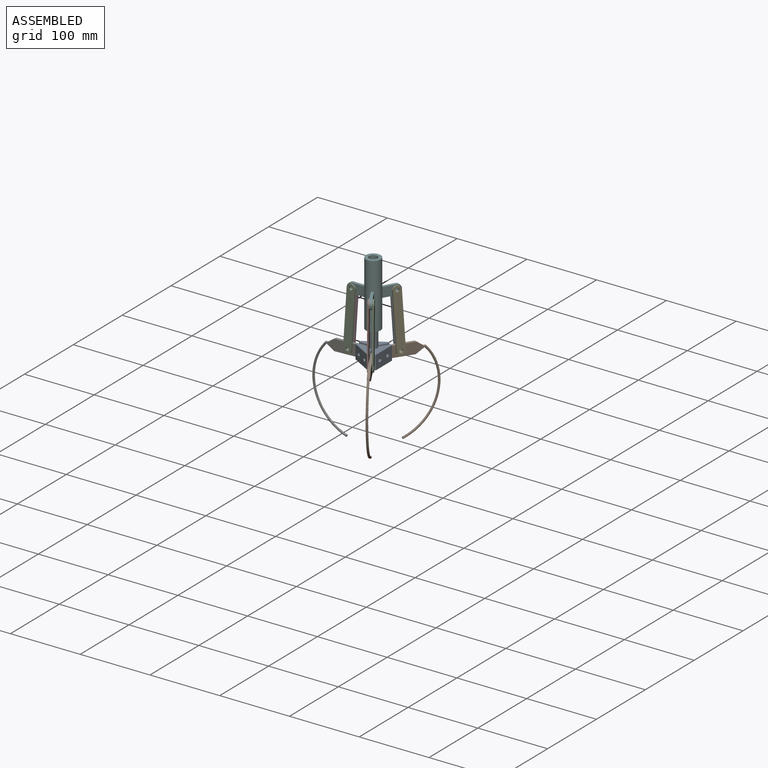
[diagram: assembled view]
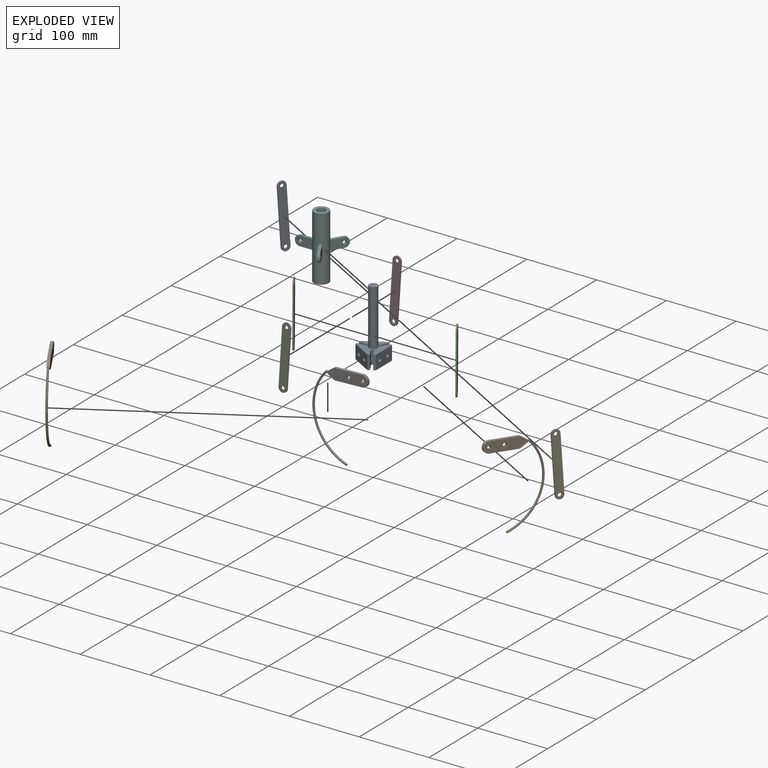
[diagram: exploded view]
GUIDED TOUR — MATED ASSEMBLY (Onshape document cd99ab42009fdd56e23e20a0, AutoMate assembly cd99ab42009fdd56e23e20a0_7320a39aca92b8e2df972b13_fc60f6d1e0266c84082ffd5f_default)

This assembly has 11 components, labeled P0..P10 below (a component is one placed occurrence of a part; the same part can appear more than once), held together by 16 mates. A mate is a constraint between two components; its type names the relative motion it leaves free:
  REVOLUTE — leaves rotation about the listed axis free (a hinge),
  SLIDER — leaves translation along the listed axis free.
Axis/direction vectors are unit vectors and 'through' points are millimeter coordinates, both in the assembly's world frame.

MATES
  1. REVOLUTE "Revolute 5": P3 <-> P6, axis (0.000, -1.000, 0.000) through (-34.49, 2.00, -126.84) mm
  2. REVOLUTE "Revolute 6": P9 <-> P0, axis (0.866, 0.500, 0.000) through (8.98, -11.56, -126.17) mm
  3. REVOLUTE "Revolute 10": P2 <-> P5, axis (0.866, 0.500, 0.000) through (16.43, -24.46, -47.00) mm
  4. REVOLUTE "Revolute 7": P1 <-> P0, axis (0.866, -0.500, 0.000) through (8.98, 11.56, -126.17) mm
  5. REVOLUTE "Revolute 2": P10 <-> P6, axis (0.000, 1.000, 0.000) through (-34.49, -2.00, -126.84) mm
  6. REVOLUTE "Revolute 15": P1 <-> P4, axis (0.866, -0.500, 0.000) through (18.98, 28.87, -126.84) mm
  7. REVOLUTE "Revolute 11": P5 <-> P7, axis (-0.866, -0.500, 0.000) through (12.97, -26.46, -47.00) mm
  8. REVOLUTE "Revolute 3": P10 <-> P5, axis (0.000, 1.000, 0.000) through (-29.40, -2.00, -47.00) mm
  9. REVOLUTE "Revolute 9": P7 <-> P9, axis (0.866, 0.500, 0.000) through (15.51, -30.87, -126.84) mm
  10. REVOLUTE "Revolute 12": P8 <-> P1, axis (0.866, -0.500, 0.000) through (15.51, 30.87, -126.84) mm
  11. REVOLUTE "Revolute 13": P8 <-> P5, axis (0.866, -0.500, 0.000) through (12.97, 26.46, -47.00) mm
  12. REVOLUTE "Revolute 14": P4 <-> P5, axis (-0.866, 0.500, 0.000) through (16.43, 24.46, -47.00) mm
  13. SLIDER "Slider 1": P0 <-> P5, axis (0.000, 0.000, -1.000) through (0.00, 0.00, -76.17) mm
  14. REVOLUTE "Revolute 1": P6 <-> P0, axis (0.000, -1.000, 0.000) through (-14.50, -2.00, -126.17) mm
  15. REVOLUTE "Revolute 4": P3 <-> P5, axis (0.000, -1.000, 0.000) through (-29.40, 2.00, -47.00) mm
  16. REVOLUTE "Revolute 8": P2 <-> P9, axis (-0.866, -0.500, 0.000) through (18.98, -28.87, -126.84) mm

ASSEMBLY ORDER
  1. P0 — the base component [order heuristic]
  2. P5 [order verified]
  3. P9 — core [order heuristic]
  4. P1 — core [order heuristic]
  5. P4 [order verified]
  6. P7 [order verified]
  7. P3 [order verified]
  8. P10 [order verified]
  9. P6 [order verified]
  10. P2 [order verified]
  11. P8 [order verified]
Order-tag legend:
  [order verified] — this step's position reverses a verified removal order: the component was checked to insert without passing through the ones already placed.
  [order heuristic] — the first 3 components form the assembly's core: parts whose collision-free extraction could not be verified, listed in mate-graph order.

Of the 11 components, 7 carry the full construction recipe — the FeatureScript program that regenerates the part's solid from scratch; the rest are supplied as boundary geometry only.
Each toured component is shown spotlighted twice — in the assembled view, then in the exploded view, where a leader line traces a displaced component back to its assembled socket (saturated green if recipe-attached, orange if geometry-only; every other component desaturated gray) — followed by its recipe or geometry summary and the mates that hold it.
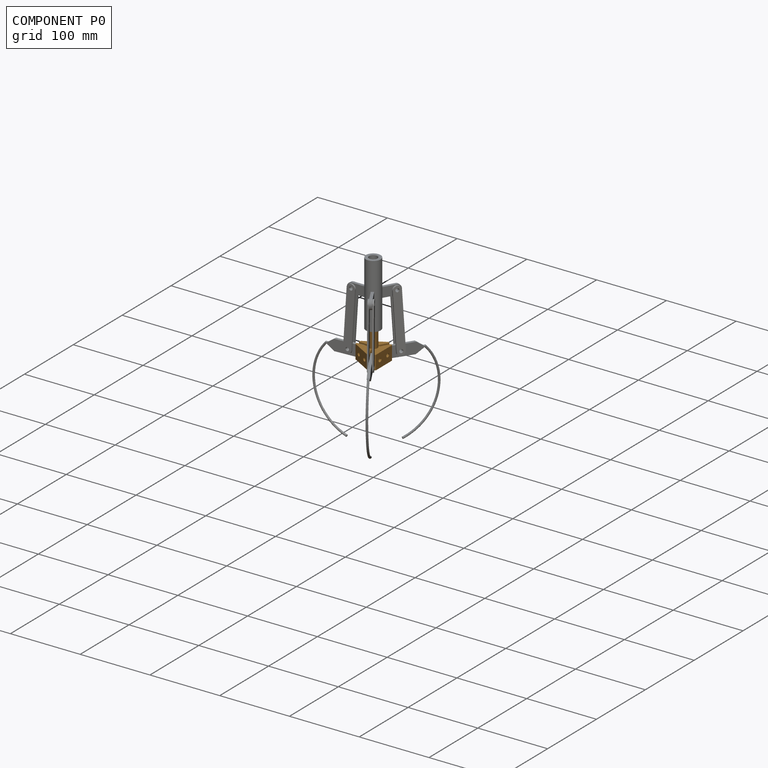
[diagram: component P0 — assembled]
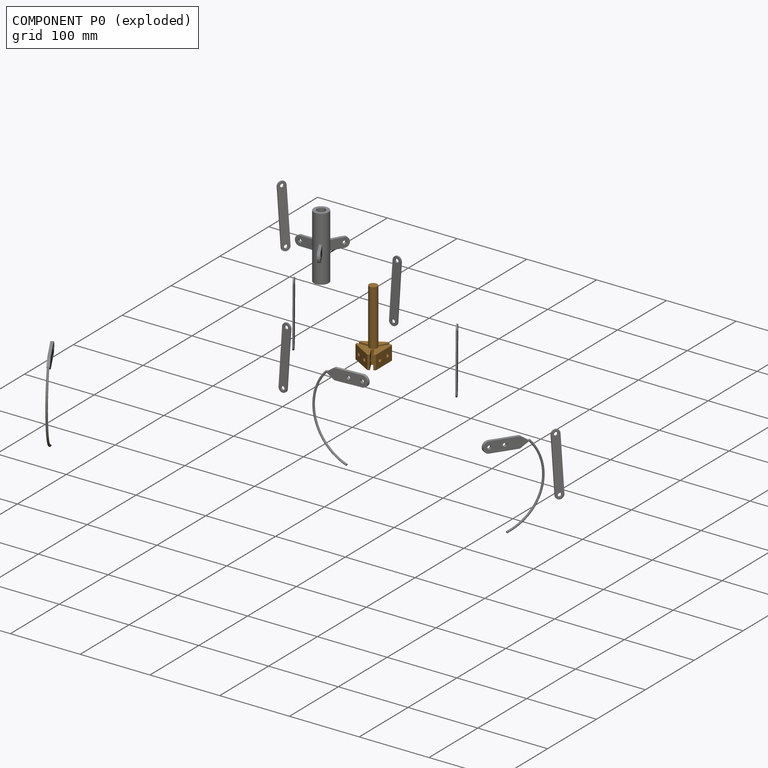
[diagram: component P0 — exploded]
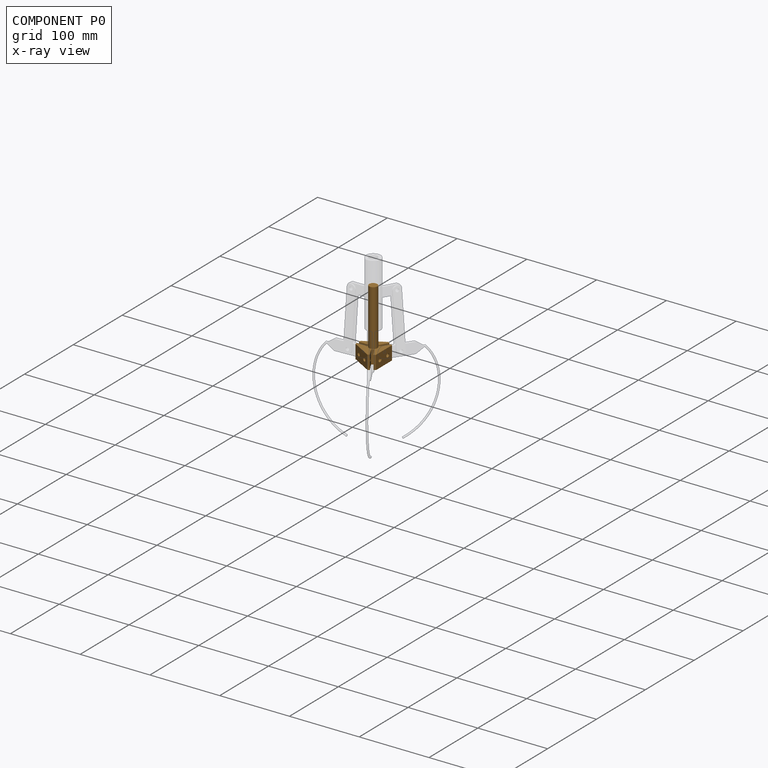
[diagram: component P0 — x-ray view]
COMPONENT P0 — geometry summary (no construction recipe available for this part):
  bounding box: 100.6 x 43.7 x 40.4 mm
  B-rep topology: 1 solid, 28 faces, 154 edges
  volume: 26399 mm^3 (15% of its bounding box)
  symmetry: mirror-symmetric across its x mid-plane
Held by: REVOLUTE mate "Revolute 6" to P9; REVOLUTE mate "Revolute 7" to P1; SLIDER mate "Slider 1" to P5; REVOLUTE mate "Revolute 1" to P6.
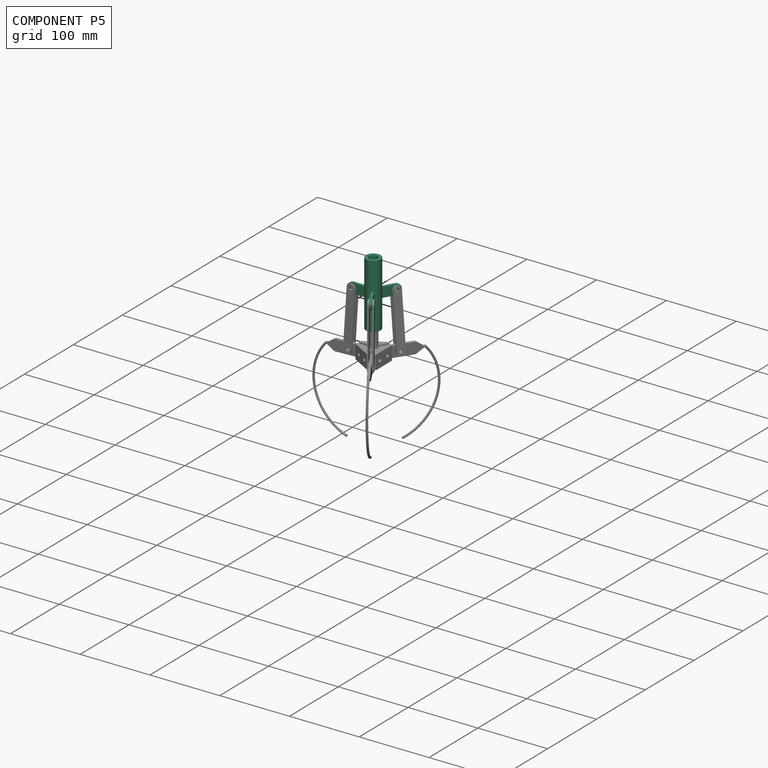
[diagram: component P5 — assembled]
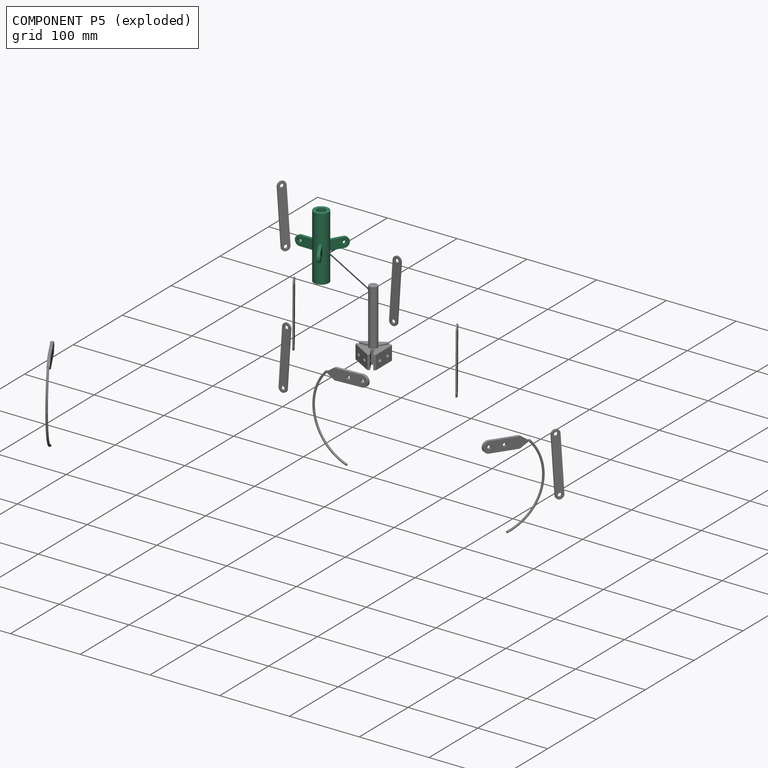
[diagram: component P5 — exploded]
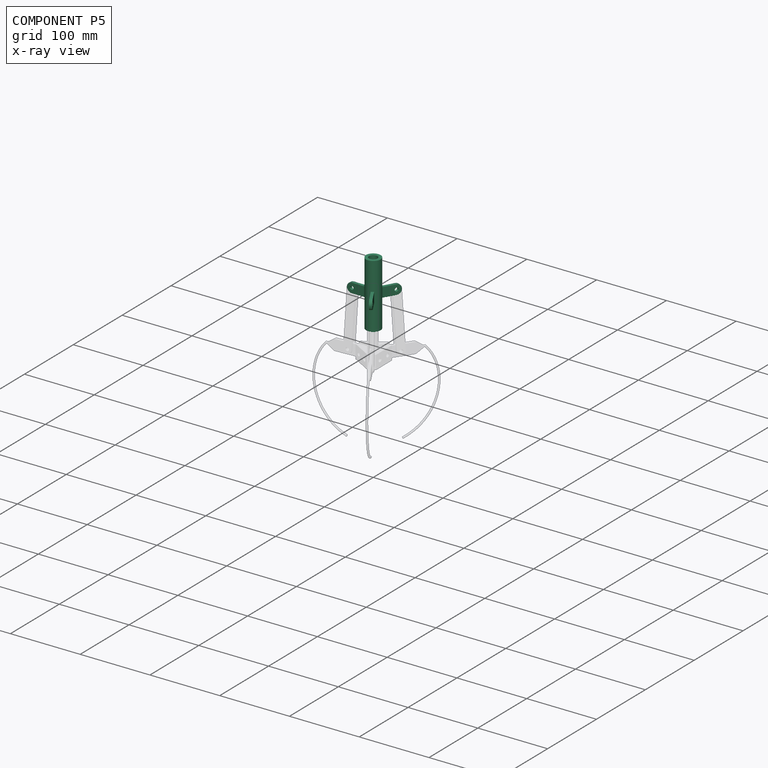
[diagram: component P5 — x-ray view]
COMPONENT P5 — recipe-attached (CADFS 00872851, mesh-verified: the recipe's output STEP matches this component's geometry to below the mesh-comparison resolution (tessellation chordal tolerance ~0.189 mm)).
Held by: REVOLUTE mate "Revolute 10" to P2; REVOLUTE mate "Revolute 11" to P7; REVOLUTE mate "Revolute 3" to P10; REVOLUTE mate "Revolute 13" to P8; REVOLUTE mate "Revolute 14" to P4; SLIDER mate "Slider 1" to P0; REVOLUTE mate "Revolute 4" to P3.
Construction recipe (FeatureScript — the CAD program that rebuilds this solid; sketch coordinates are in the units given by the * unit suffixes, e.g. mm):

FeatureScript 1511;
import(path : "onshape/std/geometry.fs", version : "1511.0");
import(path : "onshape/std/common.fs", version : "1511.0");
const mm = millimeter;
const VERTEX = EntityType.VERTEX;
const EDGE = EntityType.EDGE;
const FACE = EntityType.FACE;
const BODY = EntityType.BODY;
function v(x, y){return vector(x, y);}
function OD(order){return orderDisambiguation(order);}
function OSD(set){return originalSetDisambiguation(set);}
function TD(topology){return topologyDisambiguation(topology);}
function TDD(query){return trueDependencyDisambiguation(query);}
function sQuery(a, b, c) {return sketchEntityQuery(a, b, c);}

annotation { "Feature Type Name" : "Feature", "Feature Type Description" : "" }
export const myFeature = defineFeature(function(context is Context, id is Id, definition is map)
    precondition{}
    {
        {
            var Q0;
            Q0=qCreatedBy(makeId("Top.planeOp"),FACE);
            var sketch = newSketch(context, id + "F0", { "sketchPlane" : qUnion([Q0])});
            skCircle(sketch, "E0", {"center": v(0, 0) * mm, "radius": 10.6 * mm});
            skSolve(sketch);
        }
        {
            var Q0;
            Q0 = qSketchRegion(id + "F0", true);
            extrude(context, id + "F1", {"entities" : qUnion([Q0]), "depth" : (460 / 5) * mm, "offsetDistance" : 25 * mm});
        }
        {
            var Q0;
            Q0=makeQuery(id+"F1.opExtrude","CAP_FACE",FACE,{"disambiguationData":[OSD([sQuery(id+"F0.wireOp",EDGE,"E0")])],"isStart":true});
            var sketch = newSketch(context, id + "F2", { "sketchPlane" : qUnion([Q0])});
            skCircle(sketch, "E1", {"center": v(0, 0) * mm, "radius": 6 * mm});
            skSolve(sketch);
        }
        {
            var Q0;
            Q0 = qSketchRegion(id + "F2", true);
            extrude(context, id + "F3", {"entities" : qUnion([Q0]), "operationType" : NewBodyOperationType.REMOVE, "oppositeDirection" : true, "depth" : 98.1 * mm, "offsetDistance" : 25 * mm});
        }
        {
            var Q0;
            Q0=qCreatedBy(makeId("Front.planeOp"),FACE);
            var sketch = newSketch(context, id + "F4", { "sketchPlane" : qUnion([Q0])});
            skArc(sketch, "E2", {"start": v(-29.4, 52) * mm, "mid": v(-36.4, 45) * mm, "end": v(-29.4, 38) * mm});
            skLineSegment(sketch, "E3", {"start": v(-29.4, 52) * mm, "end": v(-9.78, 52) * mm});
            skLineSegment(sketch, "E4", {"start": v(-29.4, 38) * mm, "end": v(-9.78, 38) * mm});
            skLineSegment(sketch, "E5", {"start": v(-9.78, 52) * mm, "end": v(-9.78, 38) * mm});
            skSolve(sketch);
        }
        {
            var Q0;
            Q0 = qSketchRegion(id + "F4", true);
            extrude(context, id + "F5", {"entities" : qUnion([Q0]), "operationType" : NewBodyOperationType.ADD, "endBound" : BoundingType.SYMMETRIC, "depth" : 4 * mm, "offsetDistance" : 25 * mm});
        }
        {
            var Q0;
            Q0=makeQuery(id+"F1.opExtrude","SWEPT_BODY",BODY,{"disambiguationData":[OSD([sQuery(id+"F0.wireOp",EDGE,"E0")])]});
            var Q1;
            Q1=makeQuery(id+"F1.opExtrude","SWEPT_FACE",FACE,{"disambiguationData":[OSD([sQuery(id+"F0.wireOp",EDGE,"E0")])]});
            circularPattern(context, id + "F6", {"operationType" : NewBodyOperationType.ADD, "entities" : qUnion([Q0]), "axis" : qUnion([Q1]), "angle" : 360 * degree, "instanceCount" : 3, "equalSpace" : true});
        }
        {
            var Q0;
            Q0=makeQuery(id+"F5.opExtrude","CAP_FACE",FACE,{"disambiguationData":[OSD([sQuery(id+"F4.wireOp",EDGE,"E2"),sQuery(id+"F4.wireOp",EDGE,"E3"),sQuery(id+"F4.wireOp",EDGE,"E4"),sQuery(id+"F4.wireOp",EDGE,"E5")])],"isStart":false});
            var sketch = newSketch(context, id + "F7", { "sketchPlane" : qUnion([Q0])});
            skCircle(sketch, "E6", {"center": v(-29.4, 45) * mm, "radius": 2.5 * mm});
            skSolve(sketch);
        }
        {
            var Q0;
            Q0 = qSketchRegion(id + "F7", true);
            extrude(context, id + "F8", {"entities" : qUnion([Q0]), "operationType" : NewBodyOperationType.REMOVE, "endBound" : BoundingType.UP_TO_NEXT, "oppositeDirection" : true, "depth" : 25 * mm, "offsetDistance" : 25 * mm});
        }
        {
            var Q0;
            Q0=makeQuery(id+"F6.opPattern","COPY",FACE,{"derivedFrom":makeQuery(id+"F5.opExtrude","CAP_FACE",FACE,{"disambiguationData":[OSD([sQuery(id+"F4.wireOp",EDGE,"E2"),sQuery(id+"F4.wireOp",EDGE,"E3"),sQuery(id+"F4.wireOp",EDGE,"E4"),sQuery(id+"F4.wireOp",EDGE,"E5")])],"isStart":true}),"instanceName":"2"});
            var sketch = newSketch(context, id + "F9", { "sketchPlane" : qUnion([Q0])});
            skCircle(sketch, "E7", {"center": v(29.4, 45) * mm, "radius": 2.5 * mm});
            skSolve(sketch);
        }
        {
            var Q0;
            Q0 = qSketchRegion(id + "F9", true);
            extrude(context, id + "F10", {"entities" : qUnion([Q0]), "operationType" : NewBodyOperationType.REMOVE, "endBound" : BoundingType.UP_TO_NEXT, "oppositeDirection" : true, "depth" : 25 * mm, "offsetDistance" : 25 * mm});
        }
        {
            var Q0;
            Q0=makeQuery(id+"F6.opPattern","COPY",FACE,{"derivedFrom":makeQuery(id+"F5.opExtrude","CAP_FACE",FACE,{"disambiguationData":[OSD([sQuery(id+"F4.wireOp",EDGE,"E2"),sQuery(id+"F4.wireOp",EDGE,"E3"),sQuery(id+"F4.wireOp",EDGE,"E4"),sQuery(id+"F4.wireOp",EDGE,"E5")])],"isStart":true}),"instanceName":"1"});
            var sketch = newSketch(context, id + "F11", { "sketchPlane" : qUnion([Q0])});
            skCircle(sketch, "E8", {"center": v(29.4, 45) * mm, "radius": 2.5 * mm});
            skSolve(sketch);
        }
        {
            var Q0;
            Q0 = qSketchRegion(id + "F11", true);
            extrude(context, id + "F12", {"entities" : qUnion([Q0]), "operationType" : NewBodyOperationType.REMOVE, "endBound" : BoundingType.UP_TO_NEXT, "oppositeDirection" : true, "depth" : 25 * mm, "offsetDistance" : 25 * mm});
        }
    });
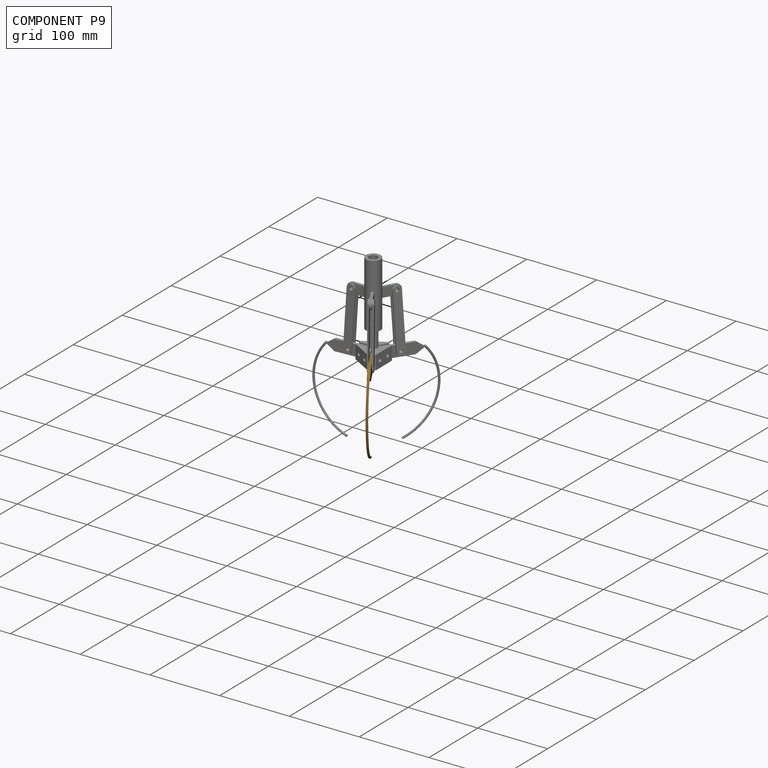
[diagram: component P9 — assembled]
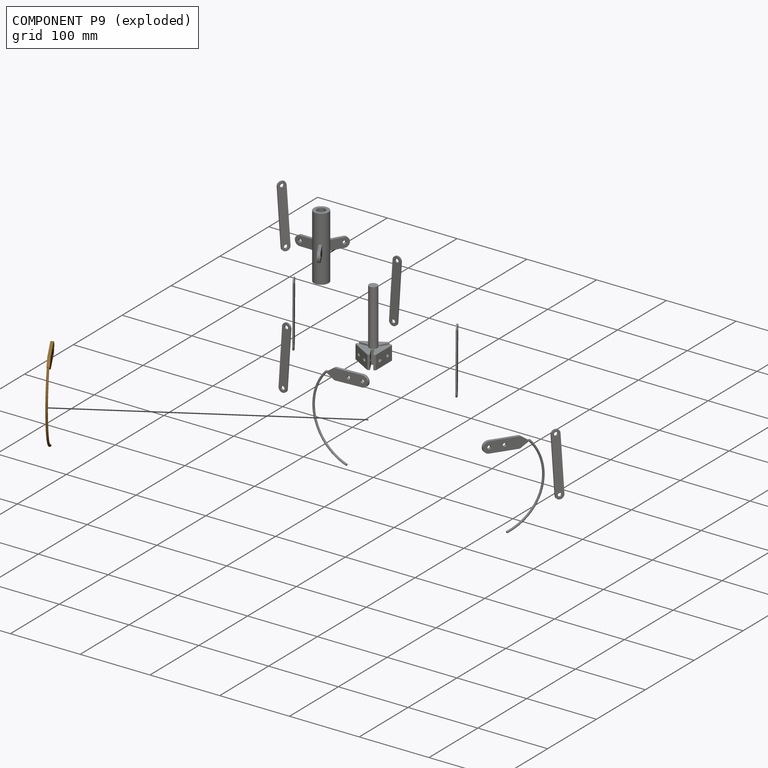
[diagram: component P9 — exploded]
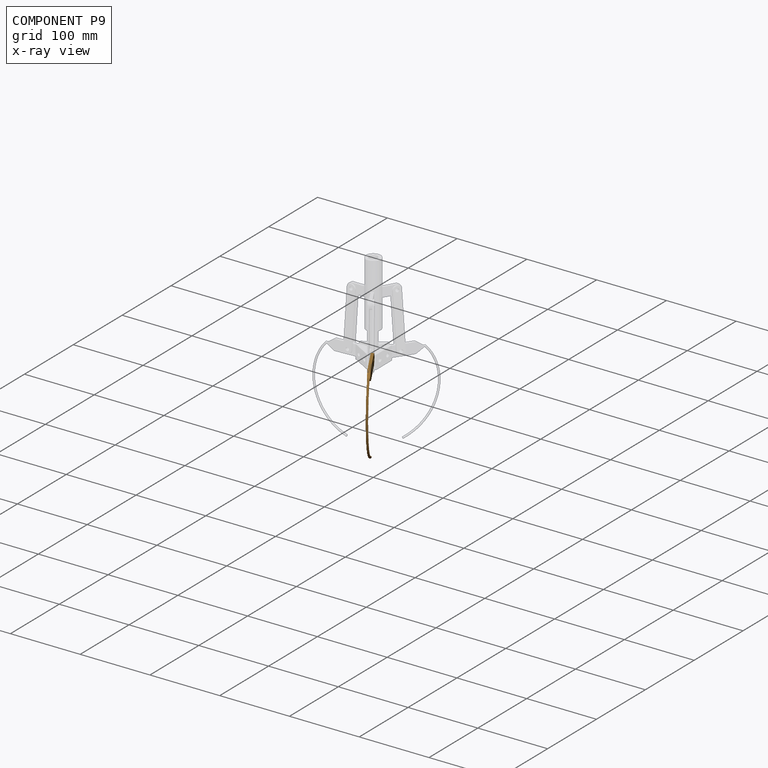
[diagram: component P9 — x-ray view]
COMPONENT P9 — geometry summary (no construction recipe available for this part):
  bounding box: 123.8 x 82.1 x 4.0 mm
  B-rep topology: 1 solid, 14 faces, 72 edges
  volume: 4181 mm^3 (10% of its bounding box)
  symmetry: mirror-symmetric across its x mid-plane
Held by: REVOLUTE mate "Revolute 6" to P0; REVOLUTE mate "Revolute 9" to P7; REVOLUTE mate "Revolute 8" to P2.
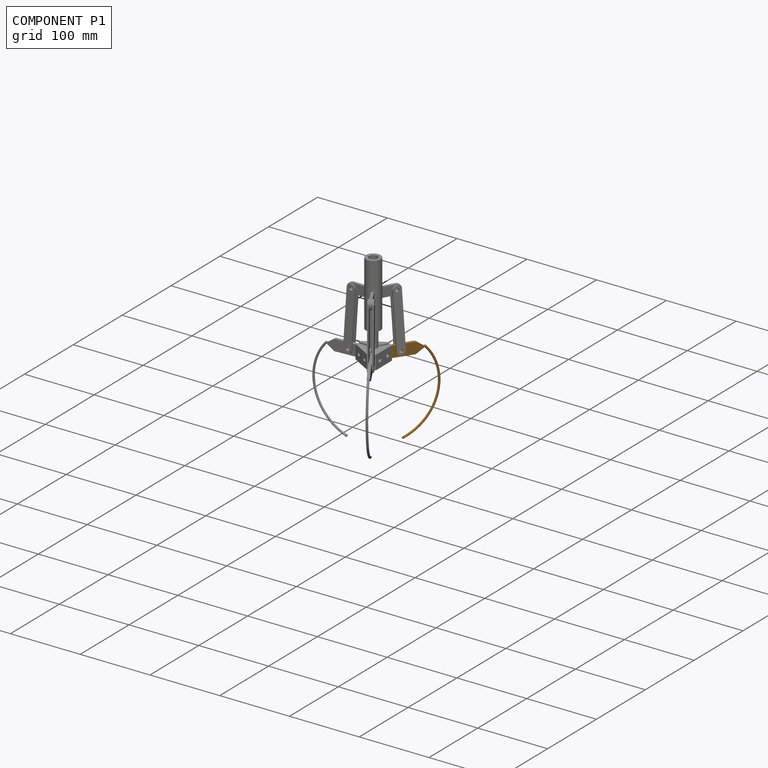
[diagram: component P1 — assembled]
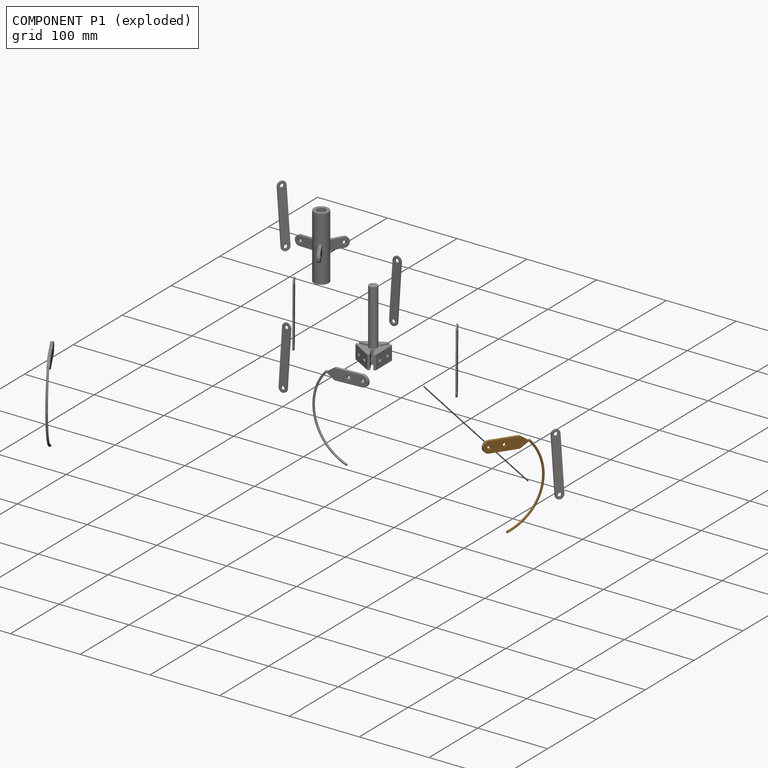
[diagram: component P1 — exploded]
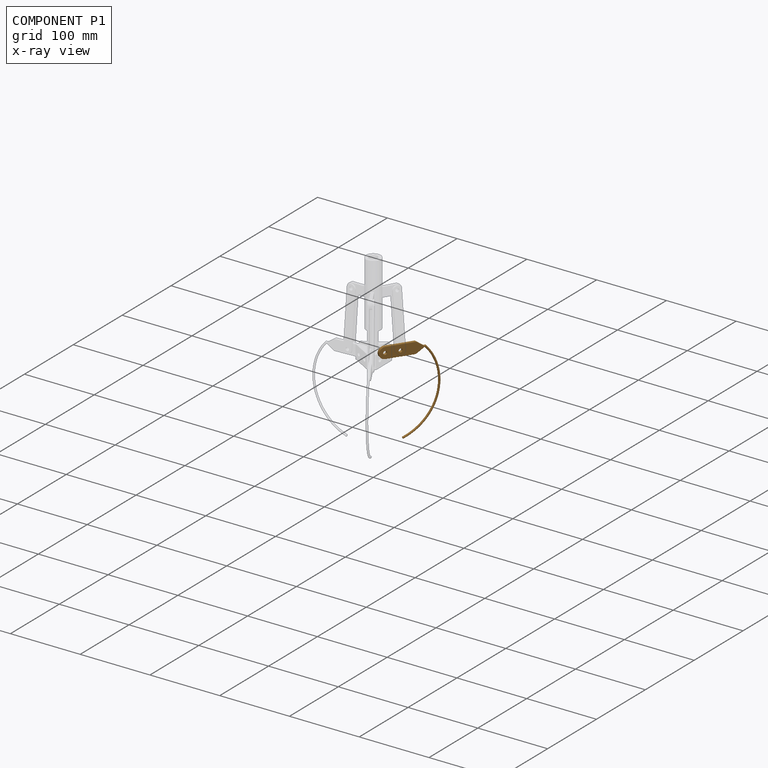
[diagram: component P1 — x-ray view]
COMPONENT P1 — geometry summary (no construction recipe available for this part):
  bounding box: 123.8 x 82.1 x 4.0 mm
  B-rep topology: 1 solid, 14 faces, 72 edges
  volume: 4181 mm^3 (10% of its bounding box)
  symmetry: mirror-symmetric across its x mid-plane
Held by: REVOLUTE mate "Revolute 7" to P0; REVOLUTE mate "Revolute 15" to P4; REVOLUTE mate "Revolute 12" to P8.
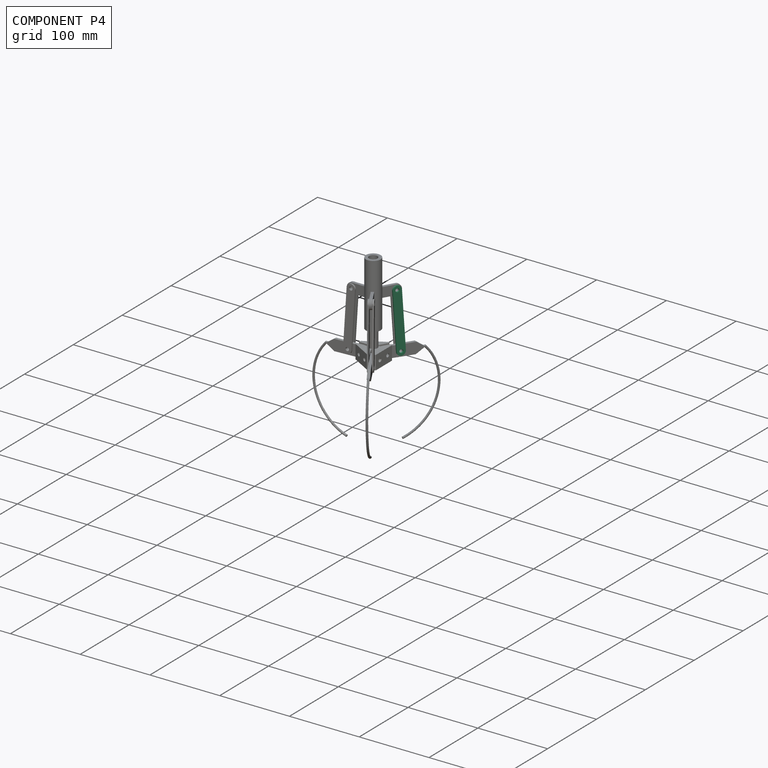
[diagram: component P4 — assembled]
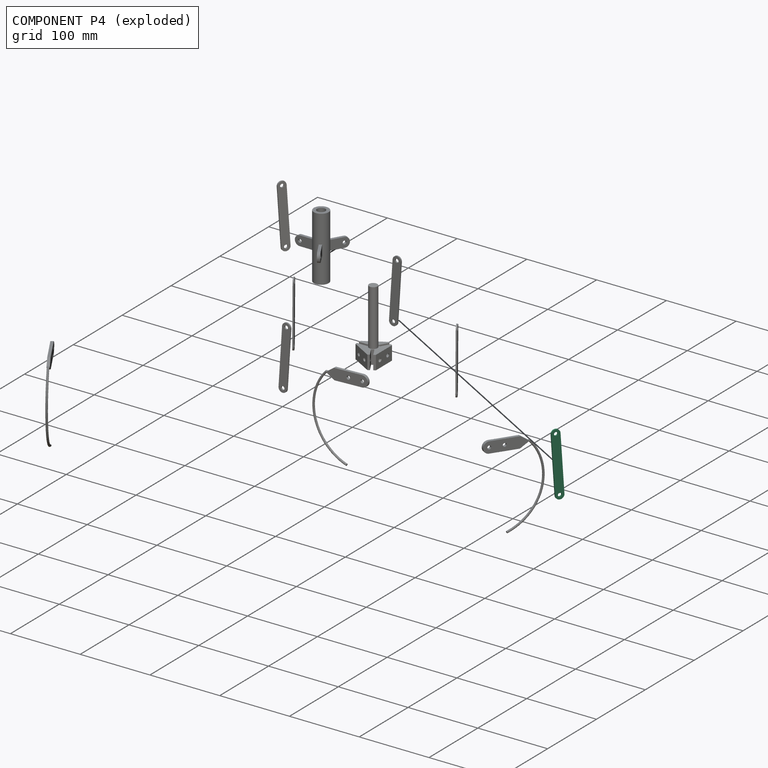
[diagram: component P4 — exploded]
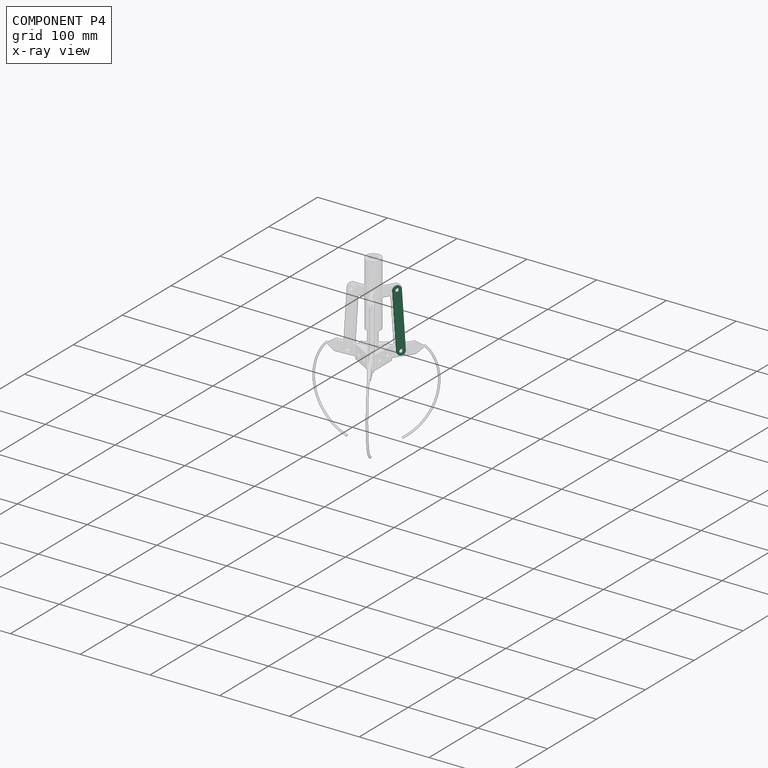
[diagram: component P4 — x-ray view]
COMPONENT P4 — same part as P2 (CADFS 00872850); its construction recipe is shown at P2.
Held by: REVOLUTE mate "Revolute 15" to P1; REVOLUTE mate "Revolute 14" to P5.
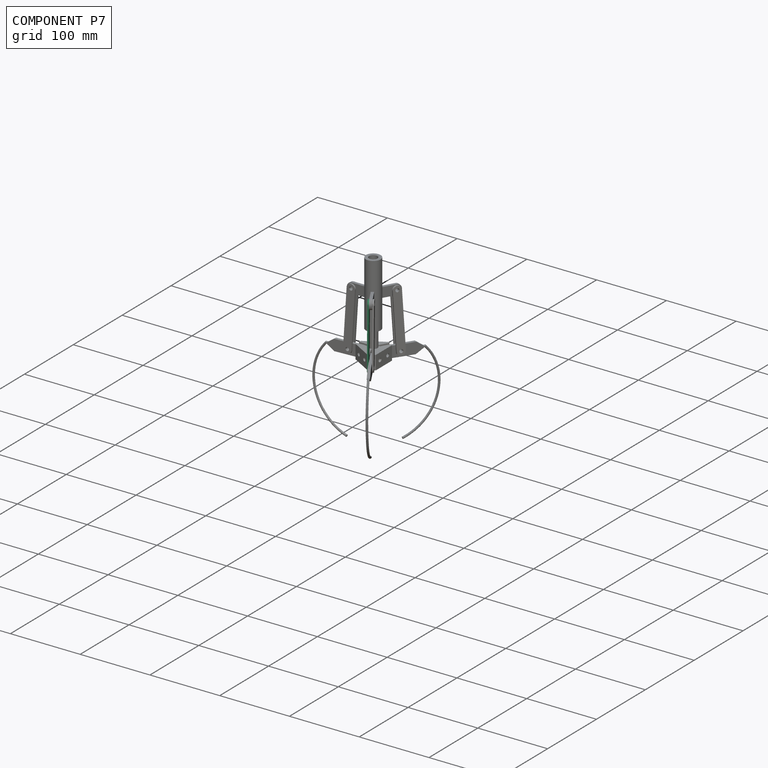
[diagram: component P7 — assembled]
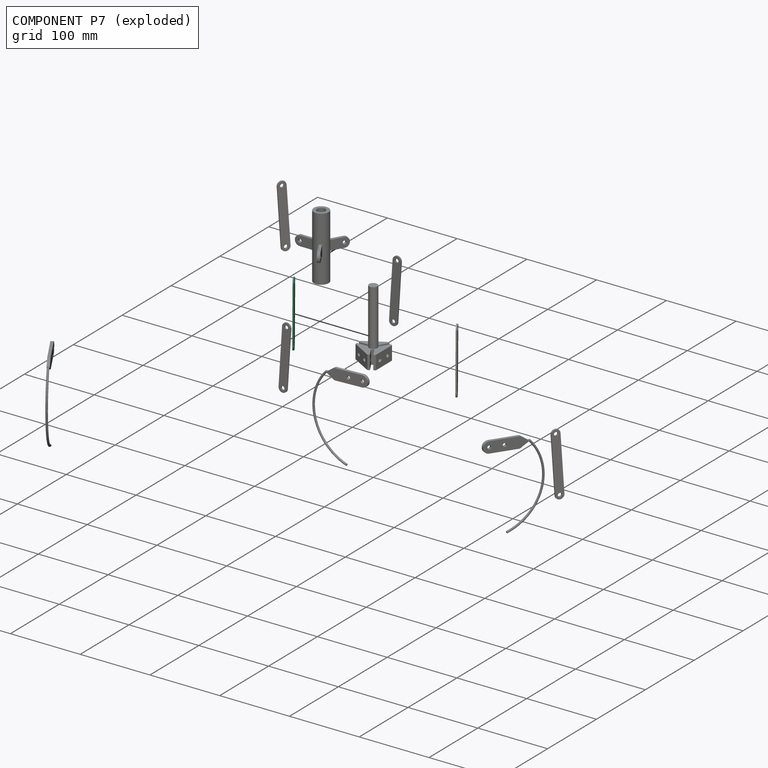
[diagram: component P7 — exploded]
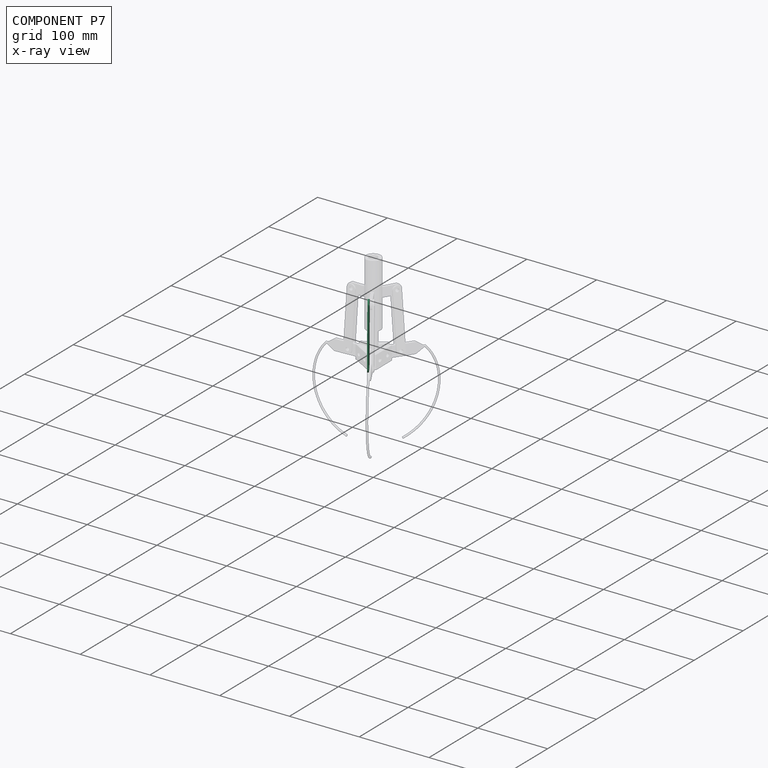
[diagram: component P7 — x-ray view]
COMPONENT P7 — same part as P2 (CADFS 00872850); its construction recipe is shown at P2.
Held by: REVOLUTE mate "Revolute 11" to P5; REVOLUTE mate "Revolute 9" to P9.
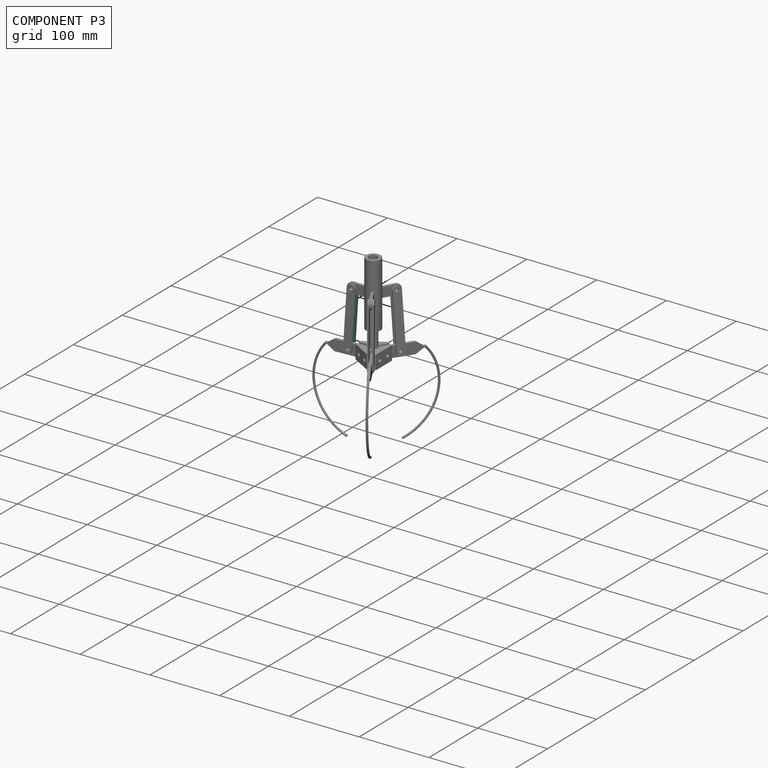
[diagram: component P3 — assembled]
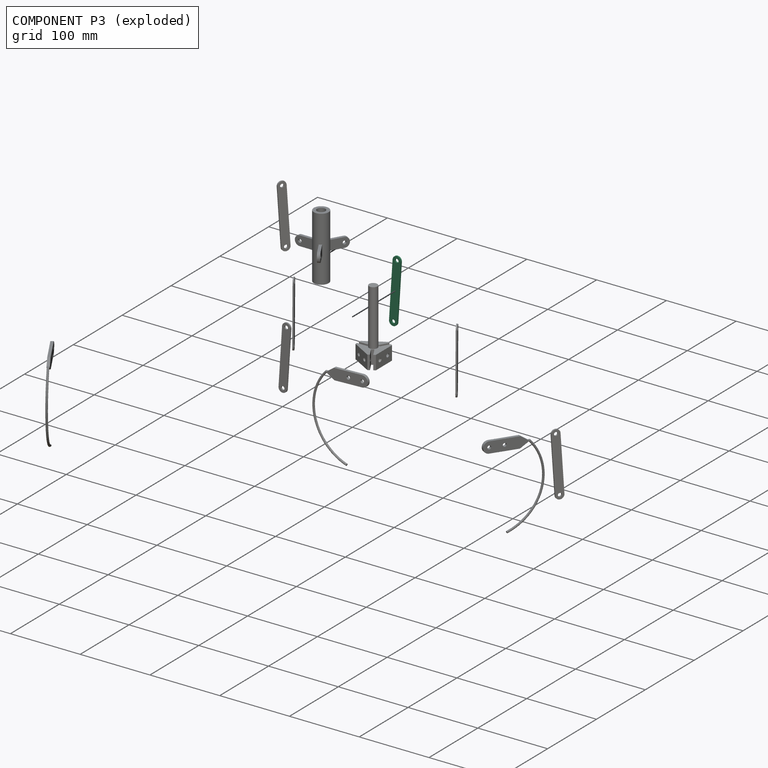
[diagram: component P3 — exploded]
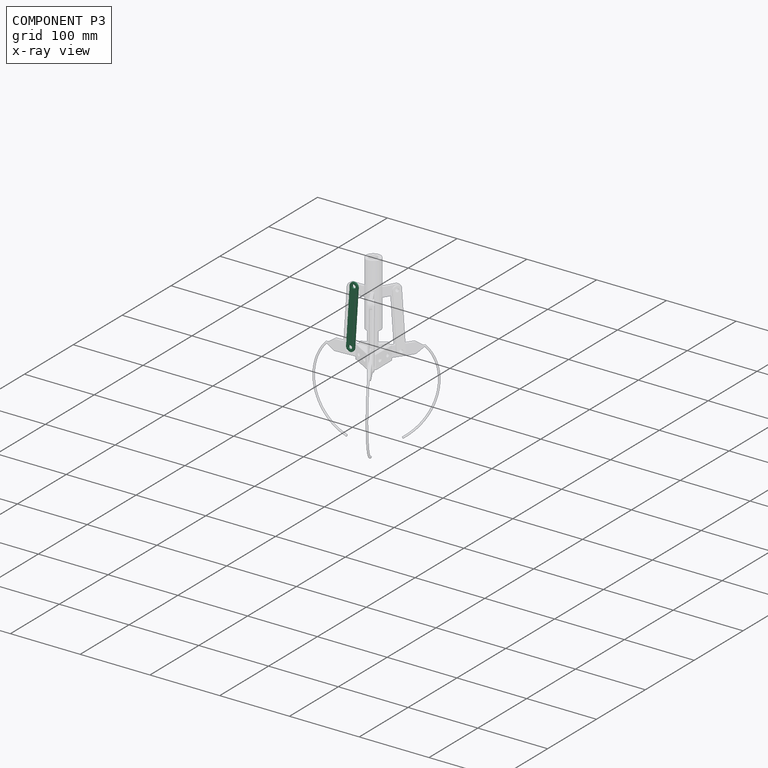
[diagram: component P3 — x-ray view]
COMPONENT P3 — same part as P2 (CADFS 00872850); its construction recipe is shown at P2.
Held by: REVOLUTE mate "Revolute 5" to P6; REVOLUTE mate "Revolute 4" to P5.
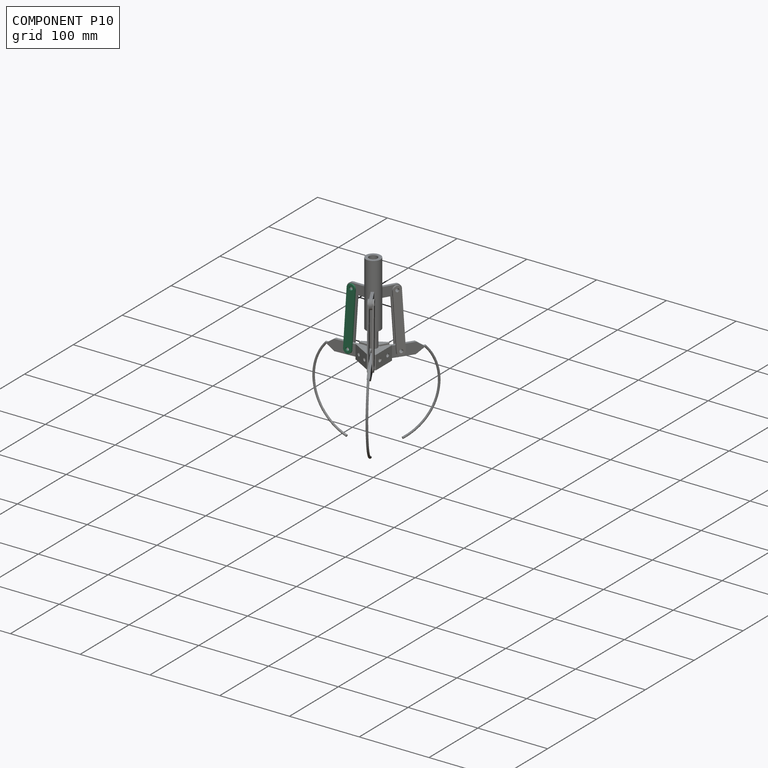
[diagram: component P10 — assembled]
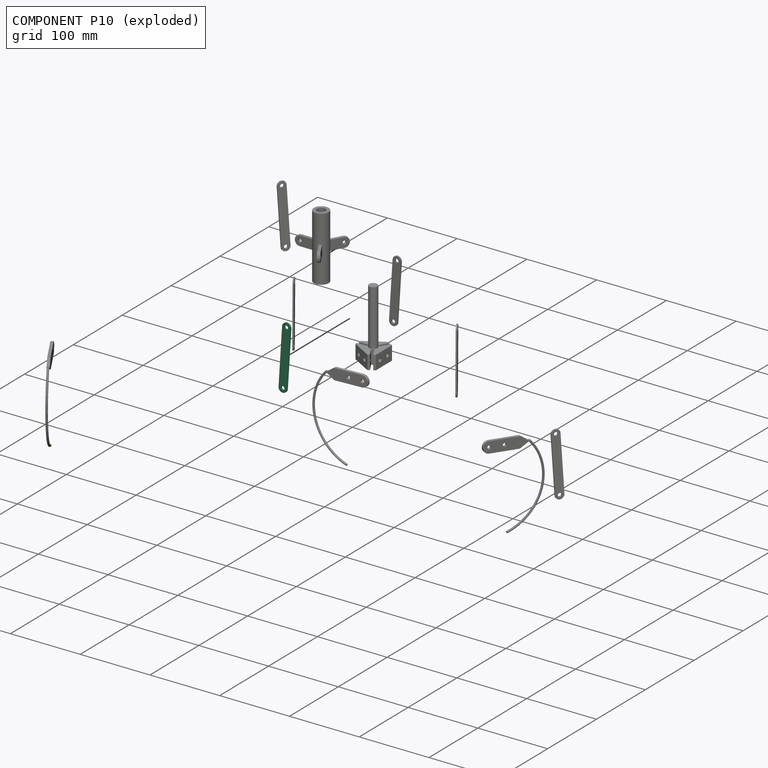
[diagram: component P10 — exploded]
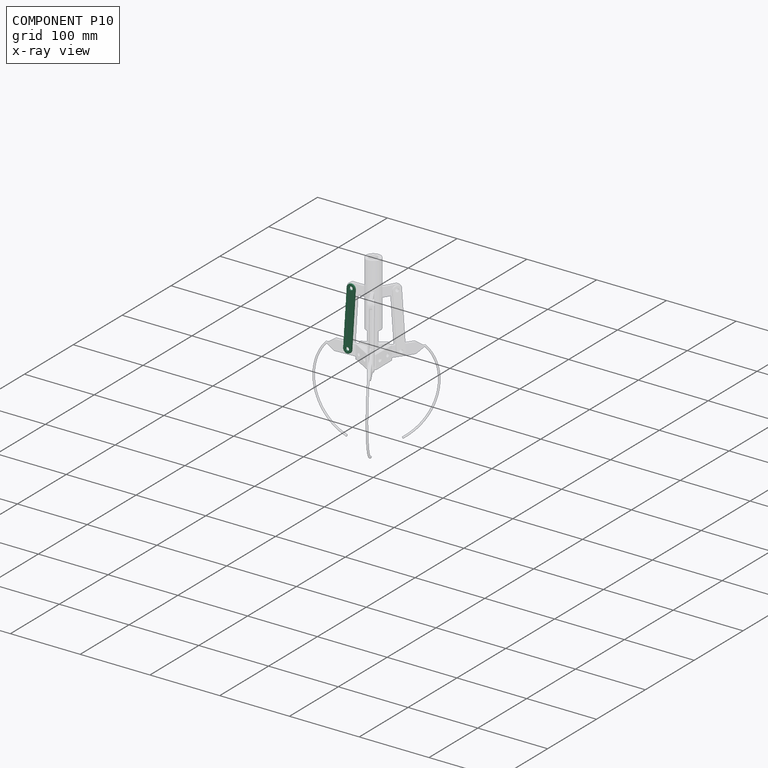
[diagram: component P10 — x-ray view]
COMPONENT P10 — same part as P2 (CADFS 00872850); its construction recipe is shown at P2.
Held by: REVOLUTE mate "Revolute 2" to P6; REVOLUTE mate "Revolute 3" to P5.
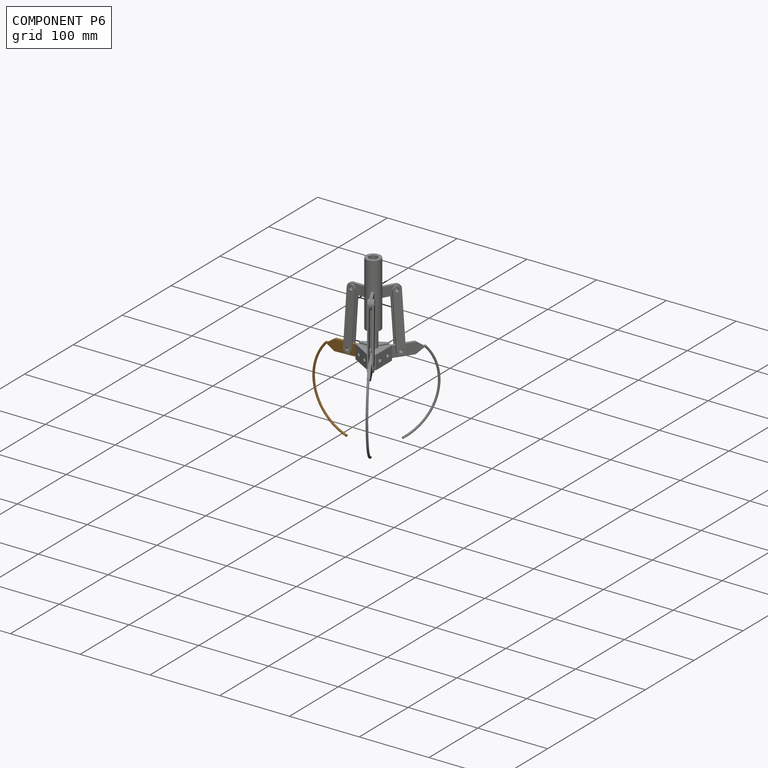
[diagram: component P6 — assembled]
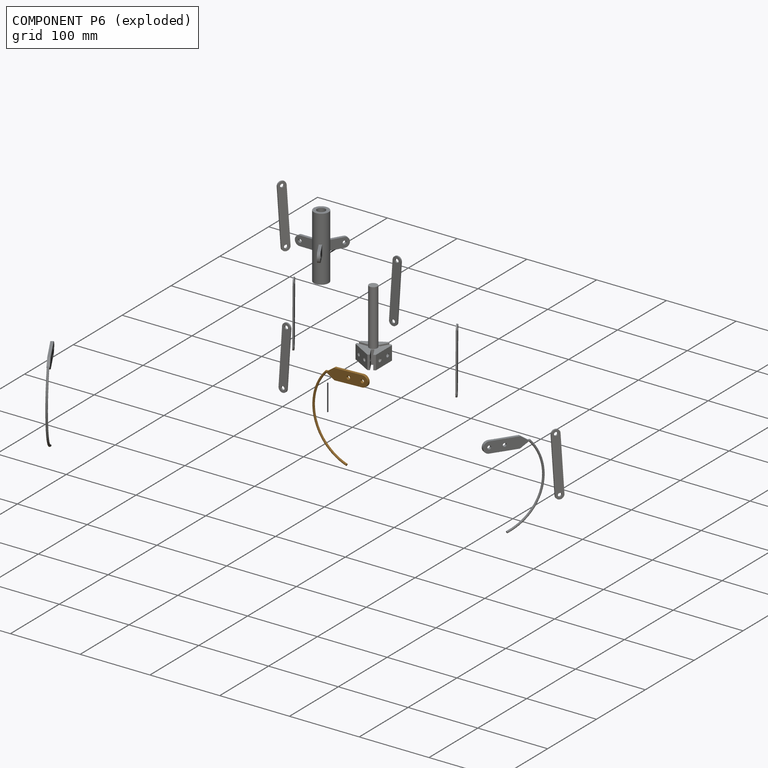
[diagram: component P6 — exploded]
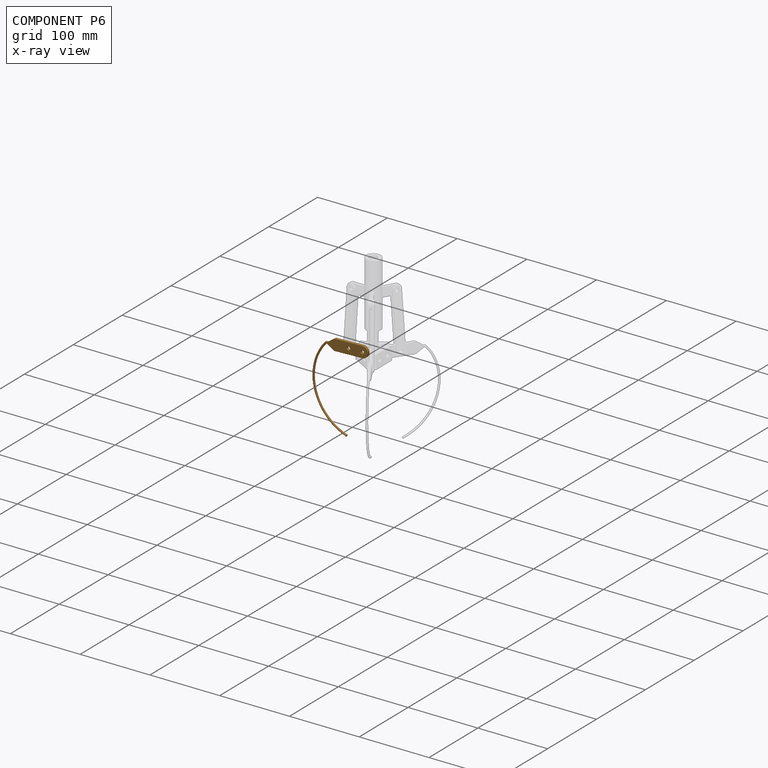
[diagram: component P6 — x-ray view]
COMPONENT P6 — geometry summary (no construction recipe available for this part):
  bounding box: 123.8 x 82.1 x 4.0 mm
  B-rep topology: 1 solid, 14 faces, 72 edges
  volume: 4181 mm^3 (10% of its bounding box)
  symmetry: mirror-symmetric across its x mid-plane
Held by: REVOLUTE mate "Revolute 5" to P3; REVOLUTE mate "Revolute 2" to P10; REVOLUTE mate "Revolute 1" to P0.
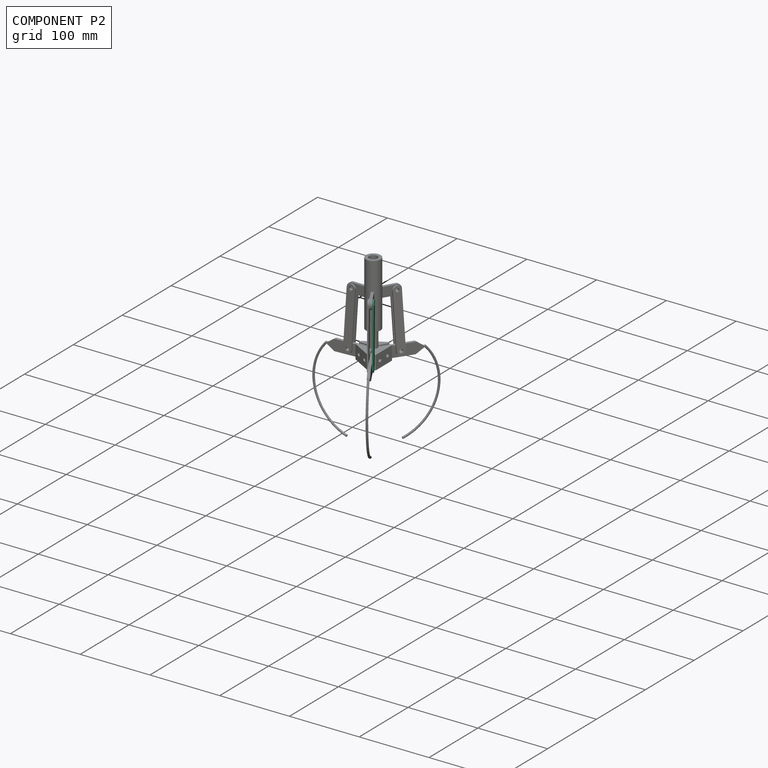
[diagram: component P2 — assembled]
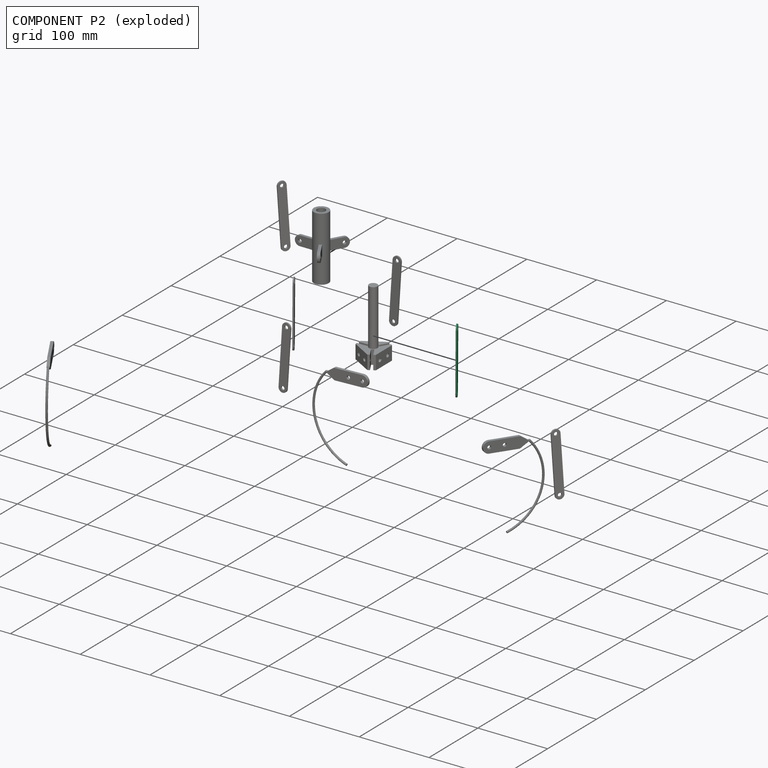
[diagram: component P2 — exploded]
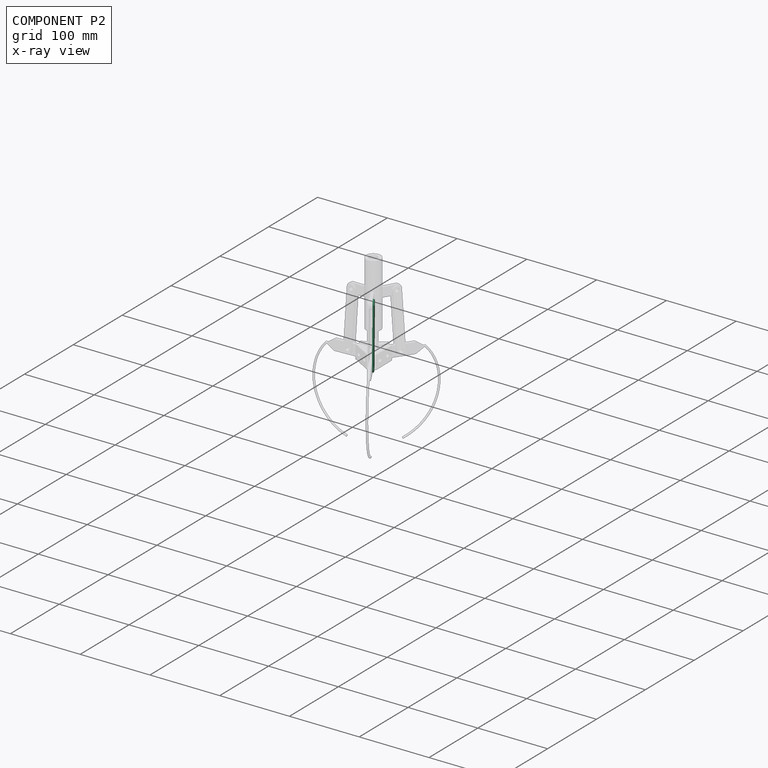
[diagram: component P2 — x-ray view]
COMPONENT P2 — recipe-attached (CADFS 00872850, mesh-verified: the recipe's output STEP matches this component's geometry to below the mesh-comparison resolution (tessellation chordal tolerance ~0.139 mm)).
Held by: REVOLUTE mate "Revolute 10" to P5; REVOLUTE mate "Revolute 8" to P9.
Construction recipe (FeatureScript — the CAD program that rebuilds this solid; sketch coordinates are in the units given by the * unit suffixes, e.g. mm):

FeatureScript 1511;
import(path : "onshape/std/geometry.fs", version : "1511.0");
import(path : "onshape/std/common.fs", version : "1511.0");
const mm = millimeter;
const VERTEX = EntityType.VERTEX;
const EDGE = EntityType.EDGE;
const FACE = EntityType.FACE;
const BODY = EntityType.BODY;
function v(x, y){return vector(x, y);}
function OD(order){return orderDisambiguation(order);}
function OSD(set){return originalSetDisambiguation(set);}
function TD(topology){return topologyDisambiguation(topology);}
function TDD(query){return trueDependencyDisambiguation(query);}
function sQuery(a, b, c) {return sketchEntityQuery(a, b, c);}

annotation { "Feature Type Name" : "Feature", "Feature Type Description" : "" }
export const myFeature = defineFeature(function(context is Context, id is Id, definition is map)
    precondition{}
    {
        {
            var Q0;
            Q0=qCreatedBy(makeId("Front.planeOp"),FACE);
            var sketch = newSketch(context, id + "F0", { "sketchPlane" : qUnion([Q0])});
            skArc(sketch, "E0", {"start": v(0, 6) * mm, "mid": v(-6, 0) * mm, "end": v(0, -6) * mm});
            skCircle(sketch, "E1", {"center": v(0, 0) * mm, "radius": 2.5 * mm});
            skArc(sketch, "E2", {"start": v(80, -6) * mm, "mid": v(86, 0) * mm, "end": v(80, 6) * mm});
            skCircle(sketch, "E3", {"center": v(80, 0) * mm, "radius": 2.5 * mm});
            skLineSegment(sketch, "E4", {"start": v(0, 6) * mm, "end": v(80, 6) * mm});
            skLineSegment(sketch, "E5", {"start": v(0, -6) * mm, "end": v(80, -6) * mm});
            skSolve(sketch);
        }
        {
            var Q0;
            Q0 = qSketchRegion(id + "F0", true);
            extrude(context, id + "F1", {"entities" : qUnion([Q0]), "depth" : 2 * mm, "offsetDistance" : 25 * mm});
        }
    });
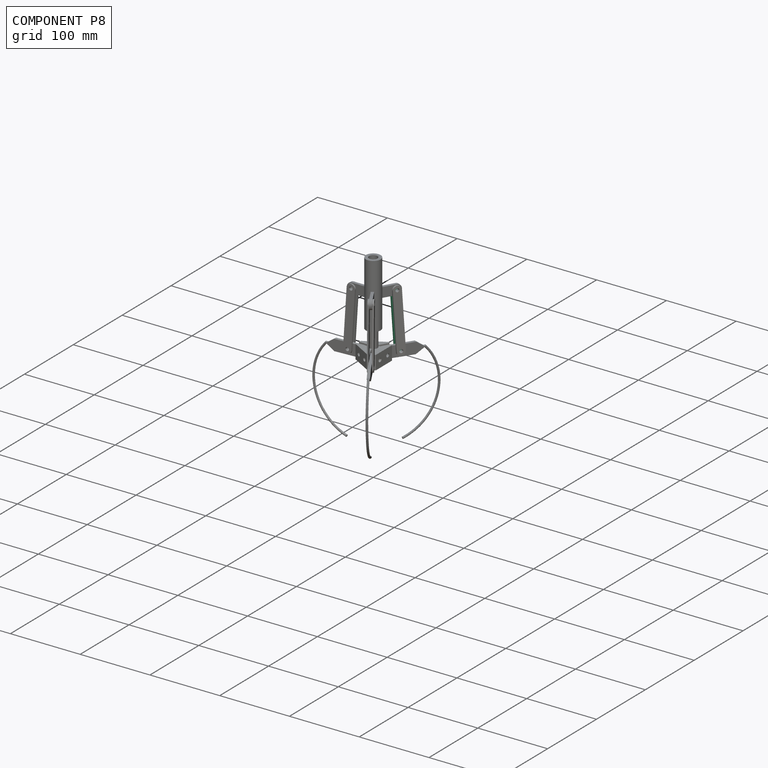
[diagram: component P8 — assembled]
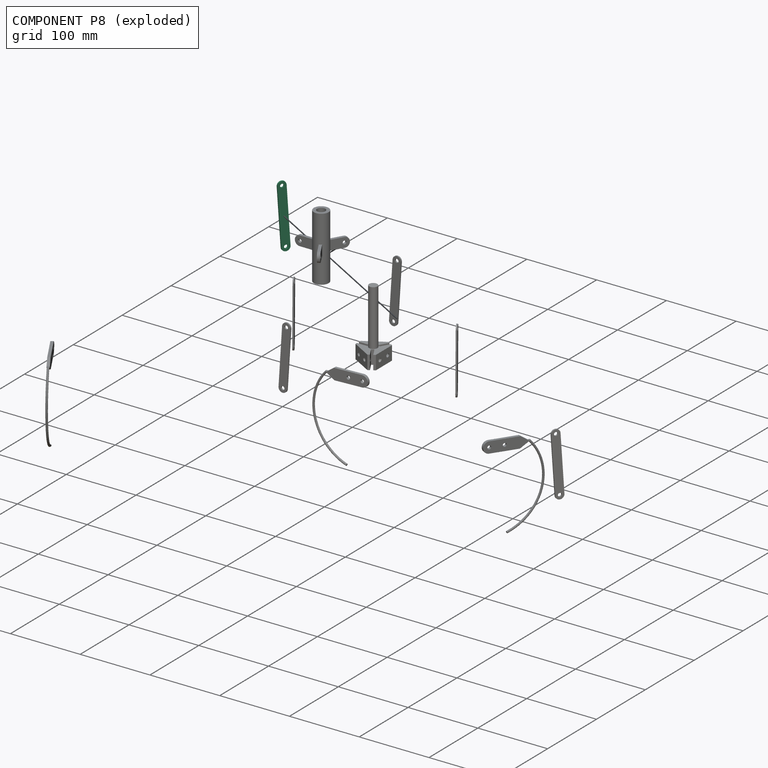
[diagram: component P8 — exploded]
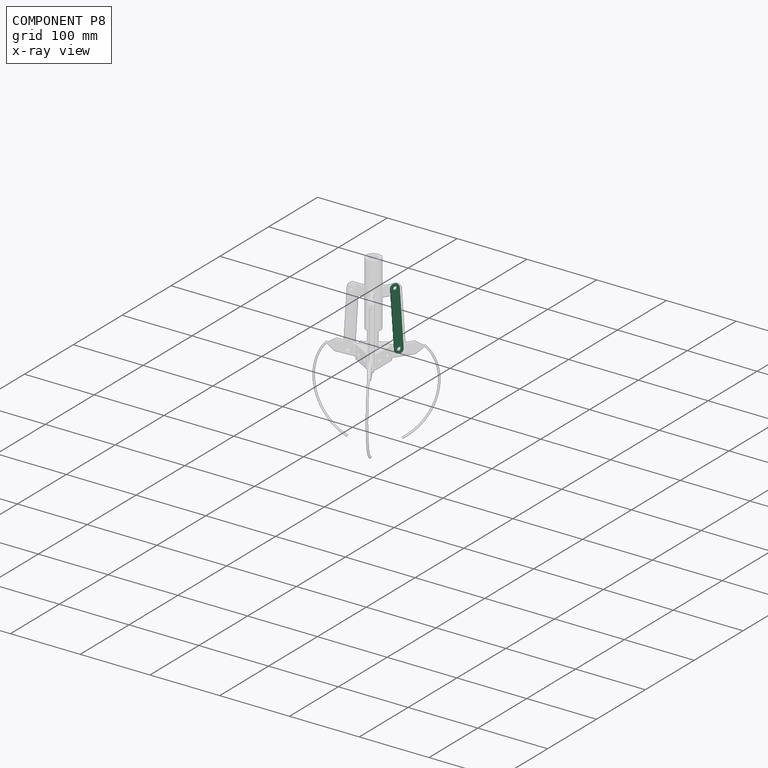
[diagram: component P8 — x-ray view]
COMPONENT P8 — same part as P2 (CADFS 00872850); its construction recipe is shown at P2.
Held by: REVOLUTE mate "Revolute 12" to P1; REVOLUTE mate "Revolute 13" to P5.
PROVENANCE & LICENSES
Assembly (occurrences, transforms, mates, per-part STEP geometry): AutoMate dataset, Zenodo record 7776208, CC0.
Construction recipes: CADFS (HuggingFace VladPyatov/CADFS, CC-BY-4.0, layered over the ABC dataset), FeatureScript reconstruction programs keyed by ABC model id.
Join: ABC meta listings map ABC model id -> Onshape documentId; within a shared document, parts are matched by geometric signature (bounding-box dims + volume at 0.1% relative tolerance, exact B-rep face/solid counts).
Verification: 7 of this assembly's 11 components carry a recipe attachment, and every attachment is mesh-verified: the CADFS STEP and the AutoMate member STEP were compared as meshes in their shared local frame (symmetric sampled-point-to-mesh distance); worst across the 7 attachments: below the mesh-comparison resolution (tessellation chordal tolerance ~0.189 mm) on a 126 mm part.
Renders: orthographic iso camera (az 35 / el 25); the floor grid conveys scale (grid pitch printed in each image; no ruler). In the exploded view each component is displaced by its stored offset vector: the offsets alone carry the explosion direction (mate normal/axis signs are not orientation cues and do not encode it), and separation distances are assigned per mate-chain, not proportionally to assembly-order depth.
